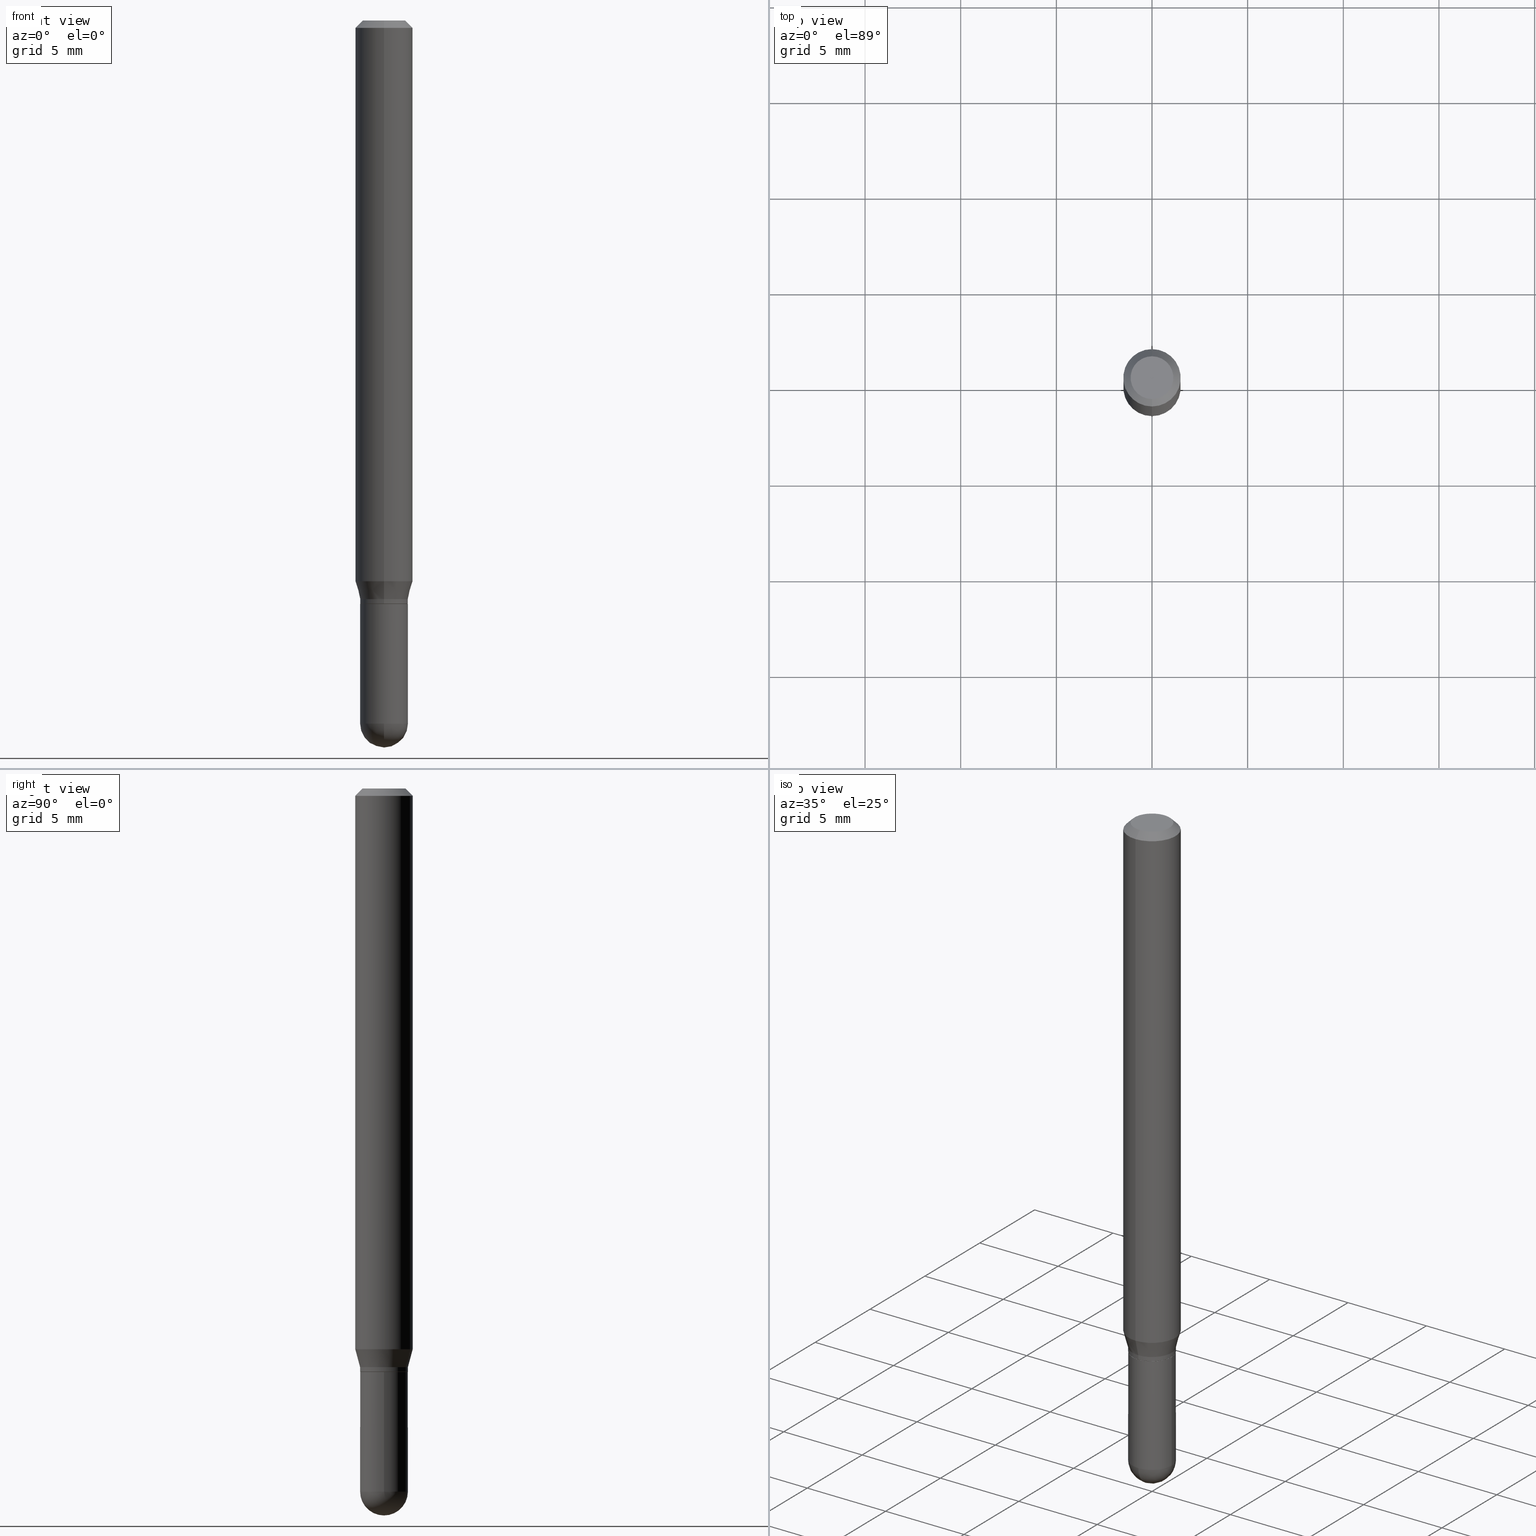
[diagram: canonical four-view strip — front | top / right | iso, engineering-drawing reading convention]
A machine part, canonical four-view strip (front | top / right | iso — engineering-drawing reading convention). The complete STEP part file that produces these views, byte-faithful:
ISO-10303-21;
HEADER;
FILE_DESCRIPTION (( 'STEP AP203' ),
    '1' );
FILE_NAME ('02974.STEP',
    '2024-03-07T22:14:01',
    ( '' ),
    ( '' ),
    'SwSTEP 2.0',
    'SolidWorks 2023',
    '' );
FILE_SCHEMA (( 'CONFIG_CONTROL_DESIGN' ));
ENDSEC;

DATA;
#1 = EDGE_CURVE ( 'NONE', #383, #22, #367, .T. ) ;
#2 = VECTOR ( 'NONE', #136, 39.37007874015748143 ) ;
#3 = AXIS2_PLACEMENT_3D ( 'NONE', #242, #206, #55 ) ;
#4 = LOCAL_TIME ( 17, 14, 1.000000000000000000, #336 ) ;
#5 = CARTESIAN_POINT ( 'NONE',  ( 3.435617637421936134E-16, 0.04919999999999580959, -1.200800000000000090 ) ) ;
#6 = ORIENTED_EDGE ( 'NONE', *, *, #311, .F. ) ;
#7 = DIRECTION ( 'NONE',  ( -2.445524756156847675E-29, 3.491401215299180303E-15, 1.000000000000000000 ) ) ;
#8 = DIRECTION ( 'NONE',  ( -2.445468806185136877E-29, 3.491481338843145188E-15, 1.000000000000000000 ) ) ;
#9 = EDGE_LOOP ( 'NONE', ( #478, #210, #399, #252 ) ) ;
#10 = ORIENTED_EDGE ( 'NONE', *, *, #161, .T. ) ;
#11 = ADVANCED_FACE ( 'NONE', ( #327 ), #317, .T. ) ;
#12 = FACE_OUTER_BOUND ( 'NONE', #437, .T. ) ;
#13 = CARTESIAN_POINT ( 'NONE',  ( 0.000000000000000000, 0.000000000000000000, 0.000000000000000000 ) ) ;
#14 = CIRCLE ( 'NONE', #299, 0.04404999999999999888 ) ;
#15 = ORIENTED_EDGE ( 'NONE', *, *, #91, .F. ) ;
#16 = AXIS2_PLACEMENT_3D ( 'NONE', #202, #277, #512 ) ;
#17 = CC_DESIGN_APPROVAL ( #304, ( #77 ) ) ;
#18 = DIRECTION ( 'NONE',  ( -6.982962677686265922E-15, -1.000000000000000000, 3.491401215299180697E-15 ) ) ;
#19 = LINE ( 'NONE', #324, #322 ) ;
#20 = PERSON_AND_ORGANIZATION_ROLE ( 'design_supplier' ) ;
#21 = CARTESIAN_POINT ( 'NONE',  ( 2.822231676616298540E-29, -4.029214212935987923E-15, -1.154039299545446928 ) ) ;
#22 = VERTEX_POINT ( 'NONE', #99 ) ;
#23 = CALENDAR_DATE ( 2024, 7, 3 ) ;
#24 = DIRECTION ( 'NONE',  ( 7.105427357601001070E-15, 1.000000000000000000, 0.000000000000000000 ) ) ;
#25 = APPLICATION_PROTOCOL_DEFINITION ( 'international standard', 'config_control_design', 1994, #85 ) ;
#26 = CONICAL_SURFACE ( 'NONE', #276, 0.04870000000000000023, 0.7853981633974739252 ) ;
#27 = ORIENTED_EDGE ( 'NONE', *, *, #425, .T. ) ;
#28 = CARTESIAN_POINT ( 'NONE',  ( 3.534141397526511158E-29, -5.057849611423951529E-15, -1.446899999999999853 ) ) ;
#29 = DIRECTION ( 'NONE',  ( -6.982962677686266711E-15, -1.000000000000000000, 2.804772067417108113E-15 ) ) ;
#30 = CARTESIAN_POINT ( 'NONE',  ( 2.936518942467111614E-29, -4.192570791682848632E-15, -1.200799999999999867 ) ) ;
#31 = VERTEX_POINT ( 'NONE', #215 ) ;
#32 = CARTESIAN_POINT ( 'NONE',  ( 3.668287134235294108E-31, -5.237101822948802526E-17, -0.01500000000000009139 ) ) ;
#33 = COORDINATED_UNIVERSAL_TIME_OFFSET ( 5, 0, .BEHIND. ) ;
#34 = EDGE_CURVE ( 'NONE', #357, #401, #417, .T. ) ;
#35 = AXIS2_PLACEMENT_3D ( 'NONE', #28, #298, #109 ) ;
#36 = CC_DESIGN_APPROVAL ( #457, ( #335 ) ) ;
#37 = DIRECTION ( 'NONE',  ( -6.982962677686265922E-15, -1.000000000000000000, 3.505890868245046092E-15 ) ) ;
#38 = EDGE_CURVE ( 'NONE', #401, #357, #70, .T. ) ;
#39 = EDGE_CURVE ( 'NONE', #482, #357, #102, .T. ) ;
#40 = APPROVAL_STATUS ( 'not_yet_approved' ) ;
#41 = VECTOR ( 'NONE', #289, 39.37007874015748854 ) ;
#42 = AXIS2_PLACEMENT_3D ( 'NONE', #90, #213, #438 ) ;
#43 = AXIS2_PLACEMENT_3D ( 'NONE', #227, #177, #29 ) ;
#44 = EDGE_CURVE ( 'NONE', #328, #482, #19, .T. ) ;
#45 = DIRECTION ( 'NONE',  ( -2.445468806185136597E-29, 3.491481338843145583E-15, 1.000000000000000000 ) ) ;
#46 = LINE ( 'NONE', #162, #130 ) ;
#47 = EDGE_CURVE ( 'NONE', #31, #362, #110, .T. ) ;
#48 = DIRECTION ( 'NONE',  ( -4.851104656540964275E-15, -0.7071067811865500152, -0.7071067811865450192 ) ) ;
#49 = AXIS2_PLACEMENT_3D ( 'NONE', #233, #195, #344 ) ;
#50 = ORIENTED_EDGE ( 'NONE', *, *, #296, .F. ) ;
#51 = CARTESIAN_POINT ( 'NONE',  ( -3.435617637421291240E-16, -0.04920000000000508689, -1.446899999999999631 ) ) ;
#52 = DIRECTION ( 'NONE',  ( -2.445524756156847955E-29, 3.491401215299180303E-15, 1.000000000000000000 ) ) ;
#53 = EDGE_CURVE ( 'NONE', #479, #494, #14, .T. ) ;
#54 = EDGE_LOOP ( 'NONE', ( #6, #433 ) ) ;
#55 = DIRECTION ( 'NONE',  ( 1.000000000000000000, -6.982962677686261977E-15, 0.000000000000000000 ) ) ;
#56 = DIRECTION ( 'NONE',  ( -2.445524756156847955E-29, 3.491401215299180303E-15, 1.000000000000000000 ) ) ;
#57 = ADVANCED_FACE ( 'NONE', ( #481 ), #129, .T. ) ;
#58 = CARTESIAN_POINT ( 'NONE',  ( 2.936586127193142595E-29, -4.192474579331255818E-15, -1.200799999999999867 ) ) ;
#59 = DIRECTION ( 'NONE',  ( -2.445524756156847955E-29, 3.491401215299180303E-15, 1.000000000000000000 ) ) ;
#60 = CONICAL_SURFACE ( 'NONE', #346, 0.05904999999999999832, 0.7853981633974483900 ) ;
#61 = ADVANCED_FACE ( 'NONE', ( #491 ), #473, .T. ) ;
#62 = PERSON_AND_ORGANIZATION ( #201, #431 ) ;
#63 = DIRECTION ( 'NONE',  ( -2.445524756156847955E-29, 3.491401215299180303E-15, 1.000000000000000000 ) ) ;
#64 = ORIENTED_EDGE ( 'NONE', *, *, #278, .T. ) ;
#65 = APPROVAL_ROLE ( '' ) ;
#66 = EDGE_CURVE ( 'NONE', #22, #328, #194, .T. ) ;
#67 = CARTESIAN_POINT ( 'NONE',  ( 2.912130879631574160E-29, -4.157560567178263821E-15, -1.190799999999999859 ) ) ;
#68 = DIRECTION ( 'NONE',  ( 0.000000000000000000, 0.000000000000000000, 1.000000000000000000 ) ) ;
#69 = DIRECTION ( 'NONE',  ( -2.445468806185136597E-29, 3.491481338843145583E-15, 1.000000000000000000 ) ) ;
#70 = CIRCLE ( 'NONE', #483, 0.05904999999999999832 ) ;
#71 = APPROVAL_STATUS ( 'not_yet_approved' ) ;
#72 = VECTOR ( 'NONE', #48, 39.37007874015748143 ) ;
#73 = DIRECTION ( 'NONE',  ( -2.445524756156847955E-29, 3.491401215299180303E-15, 1.000000000000000000 ) ) ;
#74 = EDGE_CURVE ( 'NONE', #172, #482, #198, .T. ) ;
#75 = FACE_OUTER_BOUND ( 'NONE', #9, .T. ) ;
#76 = DIRECTION ( 'NONE',  ( 1.000000000000000000, -6.982962677686265922E-15, 4.883557194083112340E-29 ) ) ;
#77 = PRODUCT_DEFINITION ( 'UNKNOWN', '', #335, #469 ) ;
#78 = CARTESIAN_POINT ( 'NONE',  ( -3.435617637421355335E-16, -0.04920000000000421259, -1.190799999999999859 ) ) ;
#79 = ADVANCED_FACE ( 'NONE', ( #144 ), #444, .F. ) ;
#80 = EDGE_LOOP ( 'NONE', ( #219, #232, #280, #450 ) ) ;
#81 = DIRECTION ( 'NONE',  ( -6.982962677686266711E-15, -1.000000000000000000, 2.804772067417108113E-15 ) ) ;
#82 = CIRCLE ( 'NONE', #505, 0.04920000000000004925 ) ;
#83 = EDGE_CURVE ( 'NONE', #172, #401, #264, .T. ) ;
#84 = PLANE ( 'NONE',  #301 ) ;
#85 = APPLICATION_CONTEXT ( 'configuration controlled 3d designs of mechanical parts and assemblies' ) ;
#86 = CYLINDRICAL_SURFACE ( 'NONE', #42, 0.05904999999999999832 ) ;
#87 = PRODUCT_DEFINITION_SHAPE ( 'NONE', 'NONE',  #77 ) ;
#88 = ORIENTED_EDGE ( 'NONE', *, *, #38, .T. ) ;
#89 = EDGE_LOOP ( 'NONE', ( #88, #164, #244, #131 ) ) ;
#90 = CARTESIAN_POINT ( 'NONE',  ( 0.000000000000000000, 0.000000000000000000, 0.000000000000000000 ) ) ;
#91 = EDGE_CURVE ( 'NONE', #157, #362, #293, .T. ) ;
#92 = CIRCLE ( 'NONE', #496, 0.04920000000000006313 ) ;
#93 = ORIENTED_EDGE ( 'NONE', *, *, #381, .T. ) ;
#94 = FACE_OUTER_BOUND ( 'NONE', #89, .T. ) ;
#95 = CC_DESIGN_PERSON_AND_ORGANIZATION_ASSIGNMENT ( #111, #369, ( #77 ) ) ;
#96 = DIRECTION ( 'NONE',  ( 1.000000000000000000, -6.982962677686261977E-15, 0.000000000000000000 ) ) ;
#97 = ORIENTED_EDGE ( 'NONE', *, *, #38, .F. ) ;
#98 = DIRECTION ( 'NONE',  ( -2.445524756156847955E-29, 3.491401215299180303E-15, 1.000000000000000000 ) ) ;
#99 = CARTESIAN_POINT ( 'NONE',  ( -3.435617637421356321E-16, -0.04920000000000428891, -1.200299999999999701 ) ) ;
#100 = EDGE_CURVE ( 'NONE', #439, #180, #207, .T. ) ;
#101 = ORIENTED_EDGE ( 'NONE', *, *, #203, .F. ) ;
#102 = LINE ( 'NONE', #179, #41 ) ;
#103 = DIRECTION ( 'NONE',  ( -1.807323732225334478E-15, -0.2588190451025187966, 0.9659258262890687563 ) ) ;
#104 = ORIENTED_EDGE ( 'NONE', *, *, #309, .F. ) ;
#105 = DIRECTION ( 'NONE',  ( -6.982962677686265922E-15, -1.000000000000000000, 2.776268286244167321E-15 ) ) ;
#106 = DATE_AND_TIME ( #340, #4 ) ;
#107 = VERTEX_POINT ( 'NONE', #250 ) ;
#108 = EDGE_CURVE ( 'NONE', #357, #216, #404, .T. ) ;
#109 = DIRECTION ( 'NONE',  ( -6.982962677686265922E-15, -1.000000000000000000, 0.000000000000000000 ) ) ;
#110 = CIRCLE ( 'NONE', #390, 0.04920000000000007007 ) ;
#111 = PERSON_AND_ORGANIZATION ( #201, #431 ) ;
#112 = VECTOR ( 'NONE', #415, 39.37007874015748143 ) ;
#113 = APPROVAL_PERSON_ORGANIZATION ( #372, #304, #65 ) ;
#114 = CARTESIAN_POINT ( 'NONE',  ( 0.04920000000000000068, -3.435617637421643269E-16, 2.399078973691600472E-30 ) ) ;
#115 = APPROVAL ( #40, 'UNSPECIFIED' ) ;
#116 = DIRECTION ( 'NONE',  ( 6.982962677686265922E-15, 1.000000000000000000, -3.505890868245046092E-15 ) ) ;
#117 = ORIENTED_EDGE ( 'NONE', *, *, #91, .T. ) ;
#118 = APPROVAL_DATE_TIME ( #235, #115 ) ;
#119 = DIRECTION ( 'NONE',  ( -2.445524756156847955E-29, 3.491401215299180303E-15, 1.000000000000000000 ) ) ;
#120 = CIRCLE ( 'NONE', #484, 0.05904999999999999832 ) ;
#121 = LOCAL_TIME ( 17, 14, 1.000000000000000000, #273 ) ;
#122 = APPROVAL_ROLE ( '' ) ;
#123 = CARTESIAN_POINT ( 'NONE',  ( 4.195754854663390985E-16, 0.05904999999999999832, -2.061672417634165953E-16 ) ) ;
#124 = DIRECTION ( 'NONE',  ( -2.445524756156847955E-29, 3.491401215299180303E-15, 1.000000000000000000 ) ) ;
#125 = CARTESIAN_POINT ( 'NONE',  ( -0.04920000000000000068, -4.272610544433528176E-15, -1.446899999999999853 ) ) ;
#126 = ORIENTED_EDGE ( 'NONE', *, *, #506, .F. ) ;
#127 = ORIENTED_EDGE ( 'NONE', *, *, #447, .F. ) ;
#128 = DIRECTION ( 'NONE',  ( 1.000000000000000000, -6.982962677686265922E-15, 4.883557194083112340E-29 ) ) ;
#129 = CYLINDRICAL_SURFACE ( 'NONE', #150, 0.04920000000000000068 ) ;
#130 = VECTOR ( 'NONE', #98, 39.37007874015748143 ) ;
#131 = ORIENTED_EDGE ( 'NONE', *, *, #161, .F. ) ;
#132 = CARTESIAN_POINT ( 'NONE',  ( -4.123439461173458309E-16, -0.05905000000000403676, -1.154039299545446706 ) ) ;
#133 = ORIENTED_EDGE ( 'NONE', *, *, #108, .F. ) ;
#134 = EDGE_LOOP ( 'NONE', ( #126, #345, #360, #140 ) ) ;
#135 = PERSON_AND_ORGANIZATION_ROLE ( 'design_owner' ) ;
#136 = DIRECTION ( 'NONE',  ( -4.937700262164674260E-15, -0.7071067811865632269, 0.7071067811865319186 ) ) ;
#137 = ADVANCED_FACE ( 'NONE', ( #337 ), #426, .T. ) ;
#138 = APPROVAL_STATUS ( 'not_yet_approved' ) ;
#139 = CARTESIAN_POINT ( 'NONE',  ( -3.435617637421355335E-16, -0.04920000000000421259, -1.190799999999999859 ) ) ;
#140 = ORIENTED_EDGE ( 'NONE', *, *, #330, .F. ) ;
#141 = EDGE_LOOP ( 'NONE', ( #495, #446, #181, #101 ) ) ;
#142 = VECTOR ( 'NONE', #103, 39.37007874015748854 ) ;
#143 = CARTESIAN_POINT ( 'NONE',  ( 3.845812557301831141E-16, 0.04919999999999589285, -1.190800000000000081 ) ) ;
#144 = FACE_OUTER_BOUND ( 'NONE', #488, .T. ) ;
#145 = DATE_TIME_ROLE ( 'creation_date' ) ;
#146 = CYLINDRICAL_SURFACE ( 'NONE', #160, 0.04920000000000000068 ) ;
#147 = LENGTH_MEASURE_WITH_UNIT ( LENGTH_MEASURE( 0.02539999999999999897 ), #190 );
#148 = CC_DESIGN_PERSON_AND_ORGANIZATION_ASSIGNMENT ( #256, #409, ( #335 ) ) ;
#149 = CARTESIAN_POINT ( 'NONE',  ( 0.04920000000000000068, -4.965759334169662144E-15, -1.446899999999999853 ) ) ;
#150 = AXIS2_PLACEMENT_3D ( 'NONE', #176, #448, #452 ) ;
#151 = CIRCLE ( 'NONE', #170, 0.04920000000000000068 ) ;
#152 = CARTESIAN_POINT ( 'NONE',  ( -0.04920000000000000068, -4.272610544433528176E-15, -1.200799999999999867 ) ) ;
#153 = VERTEX_POINT ( 'NONE', #466 ) ;
#154 = CARTESIAN_POINT ( 'NONE',  ( 2.936586127193142595E-29, -4.192474579331255818E-15, -1.200799999999999867 ) ) ;
#155 = CIRCLE ( 'NONE', #418, 0.04920000000000000068 ) ;
#156 = CIRCLE ( 'NONE', #393, 0.04404999999999999888 ) ;
#157 = VERTEX_POINT ( 'NONE', #149 ) ;
#158 = FACE_OUTER_BOUND ( 'NONE', #319, .T. ) ;
#159 = CARTESIAN_POINT ( 'NONE',  ( 2.912130879631574160E-29, -4.157560567178263821E-15, -1.190799999999999859 ) ) ;
#160 = AXIS2_PLACEMENT_3D ( 'NONE', #463, #395, #458 ) ;
#161 = EDGE_CURVE ( 'NONE', #401, #107, #422, .T. ) ;
#162 = CARTESIAN_POINT ( 'NONE',  ( -3.435617637421646227E-16, -0.04920000000000004925, 1.717769397927198566E-16 ) ) ;
#163 = DIRECTION ( 'NONE',  ( -6.982962677686265922E-15, -1.000000000000000000, 3.491401215299180303E-15 ) ) ;
#164 = ORIENTED_EDGE ( 'NONE', *, *, #108, .T. ) ;
#165 = CARTESIAN_POINT ( 'NONE',  ( 2.822231676616298540E-29, -4.029214212935987923E-15, -1.154039299545446928 ) ) ;
#166 = ORIENTED_EDGE ( 'NONE', *, *, #184, .T. ) ;
#167 = ORIENTED_EDGE ( 'NONE', *, *, #425, .F. ) ;
#168 = FACE_OUTER_BOUND ( 'NONE', #394, .T. ) ;
#169 = DIRECTION ( 'NONE',  ( -6.982962677686265922E-15, -1.000000000000000000, 4.626330217890369336E-15 ) ) ;
#170 = AXIS2_PLACEMENT_3D ( 'NONE', #226, #303, #306 ) ;
#171 = ORIENTED_EDGE ( 'NONE', *, *, #476, .T. ) ;
#172 = VERTEX_POINT ( 'NONE', #78 ) ;
#173 = CARTESIAN_POINT ( 'NONE',  ( 2.936586127193142595E-29, -4.192474579331255818E-15, -1.200799999999999867 ) ) ;
#174 = ADVANCED_FACE ( 'NONE', ( #300 ), #229, .T. ) ;
#175 = APPLICATION_CONTEXT ( 'configuration controlled 3d designs of mechanical parts and assemblies' ) ;
#176 = CARTESIAN_POINT ( 'NONE',  ( 0.000000000000000000, 0.000000000000000000, 0.000000000000000000 ) ) ;
#177 = DIRECTION ( 'NONE',  ( -2.445524756156847955E-29, 3.491401215299180303E-15, 1.000000000000000000 ) ) ;
#178 = CC_DESIGN_PERSON_AND_ORGANIZATION_ASSIGNMENT ( #492, #135, ( #231 ) ) ;
#179 = CARTESIAN_POINT ( 'NONE',  ( 3.495870259939987306E-16, 0.04919999999999589285, -1.190800000000000081 ) ) ;
#180 = VERTEX_POINT ( 'NONE', #152 ) ;
#181 = ORIENTED_EDGE ( 'NONE', *, *, #381, .F. ) ;
#182 = APPROVAL_DATE_TIME ( #290, #457 ) ;
#183 = DIRECTION ( 'NONE',  ( -2.445524756156847955E-29, 3.491401215299180303E-15, 1.000000000000000000 ) ) ;
#184 = EDGE_CURVE ( 'NONE', #368, #157, #151, .T. ) ;
#185 = CLOSED_SHELL ( 'NONE', ( #453, #498, #137, #353, #61, #308, #11, #275, #79, #398, #236, #464 ) ) ;
#186 = CC_DESIGN_APPROVAL ( #115, ( #285 ) ) ;
#187 = APPLICATION_PROTOCOL_DEFINITION ( 'international standard', 'config_control_design', 1994, #175 ) ;
#188 = CARTESIAN_POINT ( 'NONE',  ( 4.195754854663674975E-16, 0.05904999999999994975, -0.01500000000000029955 ) ) ;
#189 = EDGE_CURVE ( 'NONE', #157, #153, #193, .T. ) ;
#190 =( LENGTH_UNIT ( ) NAMED_UNIT ( * ) SI_UNIT ( $, .METRE. ) );
#191 = DIRECTION ( 'NONE',  ( -6.982962677686266711E-15, -1.000000000000000000, 2.804772067417108113E-15 ) ) ;
#192 = DIRECTION ( 'NONE',  ( 1.000000000000000000, 0.000000000000000000, 0.000000000000000000 ) ) ;
#193 = LINE ( 'NONE', #114, #272 ) ;
#194 = CIRCLE ( 'NONE', #246, 0.04920000000000006313 ) ;
#195 = DIRECTION ( 'NONE',  ( 2.445524756156847955E-29, -3.491401215299180303E-15, -1.000000000000000000 ) ) ;
#196 = PERSON_AND_ORGANIZATION ( #201, #431 ) ;
#197 = EDGE_CURVE ( 'NONE', #107, #216, #120, .T. ) ;
#198 = CIRCLE ( 'NONE', #351, 0.04920000000000004925 ) ;
#199 = DIRECTION ( 'NONE',  ( 1.000000000000000000, -6.982962677686261977E-15, 0.000000000000000000 ) ) ;
#200 = CYLINDRICAL_SURFACE ( 'NONE', #16, 0.04920000000000004925 ) ;
#201 = PERSON ( 'UNSPECIFIED', 'UNSPECIFIED', 'UNSPECIFIED', ('UNSPECIFIED'), ('UNSPECIFIED'), ('UNSPECIFIED') ) ;
#202 = CARTESIAN_POINT ( 'NONE',  ( 0.000000000000000000, 0.000000000000000000, 0.000000000000000000 ) ) ;
#203 = EDGE_CURVE ( 'NONE', #362, #439, #155, .T. ) ;
#204 = EDGE_LOOP ( 'NONE', ( #341, #503, #167, #470, #117 ) ) ;
#205 = ORIENTED_EDGE ( 'NONE', *, *, #100, .F. ) ;
#206 = DIRECTION ( 'NONE',  ( -2.445468806185136597E-29, 3.491481338843145583E-15, 1.000000000000000000 ) ) ;
#207 = LINE ( 'NONE', #356, #234 ) ;
#208 = EDGE_LOOP ( 'NONE', ( #127, #255, #315, #371 ) ) ;
#209 = ORIENTED_EDGE ( 'NONE', *, *, #44, .F. ) ;
#210 = ORIENTED_EDGE ( 'NONE', *, *, #349, .T. ) ;
#211 = DIRECTION ( 'NONE',  ( -2.445468806185136597E-29, 3.491481338843145583E-15, 1.000000000000000000 ) ) ;
#212 = CARTESIAN_POINT ( 'NONE',  ( 3.534141397526511158E-29, -5.057849611423951529E-15, -1.446899999999999853 ) ) ;
#213 = DIRECTION ( 'NONE',  ( -2.445524756156847955E-29, 3.491401215299180303E-15, 1.000000000000000000 ) ) ;
#214 = CLOSED_SHELL ( 'NONE', ( #57, #174, #472, #363, #243 ) ) ;
#215 = CARTESIAN_POINT ( 'NONE',  ( 3.652354753719438961E-29, -5.232643124420936646E-15, -1.496099999999999985 ) ) ;
#216 = VERTEX_POINT ( 'NONE', #188 ) ;
#217 = CC_DESIGN_DATE_AND_TIME_ASSIGNMENT ( #265, #145, ( #77 ) ) ;
#218 = CARTESIAN_POINT ( 'NONE',  ( 3.075995059520799729E-16, 0.04404999999999999888, -1.996303947130745053E-16 ) ) ;
#219 = ORIENTED_EDGE ( 'NONE', *, *, #349, .F. ) ;
#220 = CARTESIAN_POINT ( 'NONE',  ( 2.241772005930627124E-45, -3.200509619141994808E-31, -9.166834235829126661E-17 ) ) ;
#221 = ORIENTED_EDGE ( 'NONE', *, *, #83, .F. ) ;
#222 = CARTESIAN_POINT ( 'NONE',  ( 3.668287134235294108E-31, -5.237101822948802526E-17, -0.01500000000000009139 ) ) ;
#223 = AXIS2_PLACEMENT_3D ( 'NONE', #402, #128, #316 ) ;
#224 = APPROVAL_PERSON_ORGANIZATION ( #416, #457, #378 ) ;
#225 = DIRECTION ( 'NONE',  ( -6.982962677686265133E-15, -1.000000000000000000, 3.491401215299180303E-15 ) ) ;
#226 = CARTESIAN_POINT ( 'NONE',  ( 3.538348815669273817E-29, -5.051824349172146609E-15, -1.446899999999999853 ) ) ;
#227 = CARTESIAN_POINT ( 'NONE',  ( 2.936586127193142595E-29, -4.192474579331255818E-15, -1.200799999999999867 ) ) ;
#228 = MANIFOLD_SOLID_BREP ( 'Body-Move/Copy2[1]', #214 ) ;
#229 = SPHERICAL_SURFACE ( 'NONE', #451, 0.04920000000000007007 ) ;
#230 = MANIFOLD_SOLID_BREP ( 'Body-Move/Copy2[2]', #185 ) ;
#231 = PRODUCT ( '02974', '02974', '', ( #413 ) ) ;
#232 = ORIENTED_EDGE ( 'NONE', *, *, #468, .T. ) ;
#233 = CARTESIAN_POINT ( 'NONE',  ( 3.668287134235294108E-31, -5.237101822948802526E-17, -0.01500000000000009139 ) ) ;
#234 = VECTOR ( 'NONE', #8, 39.37007874015748143 ) ;
#235 = DATE_AND_TIME ( #428, #121 ) ;
#236 = ADVANCED_FACE ( 'NONE', ( #507 ), #26, .T. ) ;
#237 = AXIS2_PLACEMENT_3D ( 'NONE', #13, #52, #286 ) ;
#238 = AXIS2_PLACEMENT_3D ( 'NONE', #173, #326, #490 ) ;
#239 = FACE_OUTER_BOUND ( 'NONE', #297, .T. ) ;
#240 = AXIS2_PLACEMENT_3D ( 'NONE', #350, #352, #18 ) ;
#241 = DIRECTION ( 'NONE',  ( 2.438088387897960049E-29, -3.491481338843145188E-15, -1.000000000000000000 ) ) ;
#242 = CARTESIAN_POINT ( 'NONE',  ( 3.538348815669273817E-29, -5.051824349172146609E-15, -1.446899999999999853 ) ) ;
#243 = ADVANCED_FACE ( 'NONE', ( #239 ), #146, .T. ) ;
#244 = ORIENTED_EDGE ( 'NONE', *, *, #197, .F. ) ;
#245 = CARTESIAN_POINT ( 'NONE',  ( 4.195754854663672510E-16, 0.05904999999999595989, -1.154039299545446928 ) ) ;
#246 = AXIS2_PLACEMENT_3D ( 'NONE', #294, #259, #411 ) ;
#247 = CC_DESIGN_SECURITY_CLASSIFICATION ( #285, ( #335 ) ) ;
#248 = EDGE_LOOP ( 'NONE', ( #133, #379, #10, #50 ) ) ;
#249 = SPHERICAL_SURFACE ( 'NONE', #223, 0.04920000000000007007 ) ;
#250 = CARTESIAN_POINT ( 'NONE',  ( -4.123439461173736383E-16, -0.05905000000000005383, -0.01499999999999988495 ) ) ;
#251 = EDGE_LOOP ( 'NONE', ( #104, #487, #15, #408 ) ) ;
#252 = ORIENTED_EDGE ( 'NONE', *, *, #1, .F. ) ;
#253 = CARTESIAN_POINT ( 'NONE',  ( 3.495870259939987799E-16, 0.04919999999999583734, -1.200300000000000145 ) ) ;
#254 = DIRECTION ( 'NONE',  ( -2.445524756156847955E-29, 3.491401215299180303E-15, 1.000000000000000000 ) ) ;
#255 = ORIENTED_EDGE ( 'NONE', *, *, #53, .F. ) ;
#256 = PERSON_AND_ORGANIZATION ( #201, #431 ) ;
#257 = AXIS2_PLACEMENT_3D ( 'NONE', #260, #183, #105 ) ;
#258 = CIRCLE ( 'NONE', #35, 0.04920000000000007007 ) ;
#259 = DIRECTION ( 'NONE',  ( -2.445524756156847955E-29, 3.491401215299180303E-15, 1.000000000000000000 ) ) ;
#260 = CARTESIAN_POINT ( 'NONE',  ( 2.912130879631574160E-29, -4.157560567178263821E-15, -1.190799999999999859 ) ) ;
#261 = VERTEX_POINT ( 'NONE', #342 ) ;
#262 =( NAMED_UNIT ( * ) SI_UNIT ( $, .STERADIAN. ) SOLID_ANGLE_UNIT ( ) );
#263 = EDGE_LOOP ( 'NONE', ( #27, #64 ) ) ;
#264 = LINE ( 'NONE', #139, #142 ) ;
#265 = DATE_AND_TIME ( #421, #427 ) ;
#266 = CARTESIAN_POINT ( 'NONE',  ( 2.936586127193142595E-29, -4.192474579331255818E-15, -1.200799999999999867 ) ) ;
#267 = AXIS2_PLACEMENT_3D ( 'NONE', #21, #254, #454 ) ;
#268 = COORDINATED_UNIVERSAL_TIME_OFFSET ( 5, 0, .BEHIND. ) ;
#269 = DIRECTION ( 'NONE',  ( 1.000000000000000000, -6.982962677686261977E-15, 0.000000000000000000 ) ) ;
#270 = DIRECTION ( 'NONE',  ( -2.445524756156847955E-29, 3.491401215299180303E-15, 1.000000000000000000 ) ) ;
#271 = DIRECTION ( 'NONE',  ( -6.982962677686265922E-15, -1.000000000000000000, 5.552536572488332275E-15 ) ) ;
#272 = VECTOR ( 'NONE', #424, 39.37007874015748143 ) ;
#273 = COORDINATED_UNIVERSAL_TIME_OFFSET ( 5, 0, .BEHIND. ) ;
#274 = CC_DESIGN_PERSON_AND_ORGANIZATION_ASSIGNMENT ( #62, #20, ( #335 ) ) ;
#275 = ADVANCED_FACE ( 'NONE', ( #384 ), #60, .T. ) ;
#276 = AXIS2_PLACEMENT_3D ( 'NONE', #154, #429, #81 ) ;
#277 = DIRECTION ( 'NONE',  ( -2.445524756156847955E-29, 3.491401215299180303E-15, 1.000000000000000000 ) ) ;
#278 = EDGE_CURVE ( 'NONE', #180, #153, #391, .T. ) ;
#279 = CARTESIAN_POINT ( 'NONE',  ( -3.400702824032917868E-16, -0.04870000000000419133, -1.200799999999999867 ) ) ;
#280 = ORIENTED_EDGE ( 'NONE', *, *, #1, .T. ) ;
#281 = CARTESIAN_POINT ( 'NONE',  ( 3.460343123151980786E-16, 0.04869999999999580914, -1.200800000000000090 ) ) ;
#282 = ORIENTED_EDGE ( 'NONE', *, *, #34, .F. ) ;
#283 = CARTESIAN_POINT ( 'NONE',  ( -4.051124067684085231E-16, -0.05905000000000005383, -0.01499999999999988495 ) ) ;
#284 = CIRCLE ( 'NONE', #375, 0.04870000000000000023 ) ;
#285 = SECURITY_CLASSIFICATION ( '', '', #332 ) ;
#286 = DIRECTION ( 'NONE',  ( -6.982962677686265922E-15, -1.000000000000000000, 3.491401215299180303E-15 ) ) ;
#287 = DIRECTION ( 'NONE',  ( -6.982962677686265133E-15, -1.000000000000000000, 2.776268286244166532E-15 ) ) ;
#288 = CC_DESIGN_DATE_AND_TIME_ASSIGNMENT ( #392, #423, ( #285 ) ) ;
#289 = DIRECTION ( 'NONE',  ( 1.839019923739604654E-15, 0.2588190451025255689, 0.9659258262890669799 ) ) ;
#290 = DATE_AND_TIME ( #23, #420 ) ;
#291 = DIRECTION ( 'NONE',  ( -2.445524756156847955E-29, 3.491401215299180303E-15, 1.000000000000000000 ) ) ;
#292 = CARTESIAN_POINT ( 'NONE',  ( 0.000000000000000000, 0.000000000000000000, 0.000000000000000000 ) ) ;
#293 = CIRCLE ( 'NONE', #460, 0.04920000000000000068 ) ;
#294 = CARTESIAN_POINT ( 'NONE',  ( 2.935363364815064229E-29, -4.190728878723606060E-15, -1.200299999999999923 ) ) ;
#295 = LOCAL_TIME ( 17, 14, 1.000000000000000000, #33 ) ;
#296 = EDGE_CURVE ( 'NONE', #216, #107, #430, .T. ) ;
#297 = EDGE_LOOP ( 'NONE', ( #205, #93, #166, #489, #307 ) ) ;
#298 = DIRECTION ( 'NONE',  ( -1.000000000000000000, 6.982962677686265922E-15, -4.883557194083112340E-29 ) ) ;
#299 = AXIS2_PLACEMENT_3D ( 'NONE', #220, #59, #497 ) ;
#300 = FACE_OUTER_BOUND ( 'NONE', #251, .T. ) ;
#301 = AXIS2_PLACEMENT_3D ( 'NONE', #5, #241, #396 ) ;
#302 = APPROVAL_PERSON_ORGANIZATION ( #196, #115, #122 ) ;
#303 = DIRECTION ( 'NONE',  ( -2.445468806185136597E-29, 3.491481338843145583E-15, 1.000000000000000000 ) ) ;
#304 = APPROVAL ( #138, 'UNSPECIFIED' ) ;
#305 = PERSON_AND_ORGANIZATION_ROLE ( 'classification_officer' ) ;
#306 = DIRECTION ( 'NONE',  ( 1.000000000000000000, -6.982962677686261977E-15, 0.000000000000000000 ) ) ;
#307 = ORIENTED_EDGE ( 'NONE', *, *, #278, .F. ) ;
#308 = ADVANCED_FACE ( 'NONE', ( #158 ), #400, .T. ) ;
#309 = EDGE_CURVE ( 'NONE', #31, #368, #258, .T. ) ;
#310 = CARTESIAN_POINT ( 'NONE',  ( 2.912130879631574160E-29, -4.157560567178263821E-15, -1.190799999999999859 ) ) ;
#311 = EDGE_CURVE ( 'NONE', #383, #261, #284, .T. ) ;
#312 = AXIS2_PLACEMENT_3D ( 'NONE', #58, #7, #163 ) ;
#313 = DIRECTION ( 'NONE',  ( 5.024295867788190974E-15, 0.7071067811865681119, 0.7071067811865270336 ) ) ;
#314 = DIRECTION ( 'NONE',  ( -6.982962677686265922E-15, -1.000000000000000000, 2.776268286244167321E-15 ) ) ;
#315 = ORIENTED_EDGE ( 'NONE', *, *, #330, .T. ) ;
#316 = DIRECTION ( 'NONE',  ( -6.982962677686265922E-15, -1.000000000000000000, 5.552536572488332275E-15 ) ) ;
#317 = CYLINDRICAL_SURFACE ( 'NONE', #237, 0.05904999999999999832 ) ;
#318 = ORIENTED_EDGE ( 'NONE', *, *, #321, .T. ) ;
#319 = EDGE_LOOP ( 'NONE', ( #361, #171, #405, #282 ) ) ;
#320 = CYLINDRICAL_SURFACE ( 'NONE', #240, 0.04920000000000004925 ) ;
#321 = EDGE_CURVE ( 'NONE', #328, #22, #92, .T. ) ;
#322 = VECTOR ( 'NONE', #291, 39.37007874015748143 ) ;
#323 = CIRCLE ( 'NONE', #467, 0.04920000000000000068 ) ;
#324 = CARTESIAN_POINT ( 'NONE',  ( 3.495870259939695921E-16, 0.04920000000000004925, -1.717769397927198566E-16 ) ) ;
#325 = ORIENTED_EDGE ( 'NONE', *, *, #434, .T. ) ;
#326 = DIRECTION ( 'NONE',  ( -2.445524756156847955E-29, 3.491401215299180303E-15, 1.000000000000000000 ) ) ;
#327 = FACE_OUTER_BOUND ( 'NONE', #248, .T. ) ;
#328 = VERTEX_POINT ( 'NONE', #253 ) ;
#329 = DIRECTION ( 'NONE',  ( 2.445524756156847675E-29, -3.491401215299180303E-15, -1.000000000000000000 ) ) ;
#330 = EDGE_CURVE ( 'NONE', #479, #216, #436, .T. ) ;
#331 = ORIENTED_EDGE ( 'NONE', *, *, #44, .T. ) ;
#332 = SECURITY_CLASSIFICATION_LEVEL ( 'unclassified' ) ;
#333 = CIRCLE ( 'NONE', #3, 0.04920000000000000068 ) ;
#334 = DIRECTION ( 'NONE',  ( -2.445468806185136597E-29, 3.491481338843145583E-15, 1.000000000000000000 ) ) ;
#335 = PRODUCT_DEFINITION_FORMATION_WITH_SPECIFIED_SOURCE ( 'ANY', '', #231, .NOT_KNOWN. ) ;
#336 = COORDINATED_UNIVERSAL_TIME_OFFSET ( 5, 0, .BEHIND. ) ;
#337 = FACE_OUTER_BOUND ( 'NONE', #134, .T. ) ;
#338 = COORDINATED_UNIVERSAL_TIME_OFFSET ( 5, 0, .BEHIND. ) ;
#339 = CARTESIAN_POINT ( 'NONE',  ( 2.935363364815064229E-29, -4.190728878723606060E-15, -1.200299999999999923 ) ) ;
#340 = CALENDAR_DATE ( 2024, 7, 3 ) ;
#341 = ORIENTED_EDGE ( 'NONE', *, *, #203, .T. ) ;
#342 = CARTESIAN_POINT ( 'NONE',  ( 3.478106691545985279E-16, 0.04869999999999580914, -1.200800000000000090 ) ) ;
#343 = VECTOR ( 'NONE', #119, 39.37007874015748143 ) ;
#344 = DIRECTION ( 'NONE',  ( 6.982962677686265922E-15, 1.000000000000000000, -3.505890868245046092E-15 ) ) ;
#345 = ORIENTED_EDGE ( 'NONE', *, *, #447, .T. ) ;
#346 = AXIS2_PLACEMENT_3D ( 'NONE', #32, #380, #116 ) ;
#347 = AXIS2_PLACEMENT_3D ( 'NONE', #292, #68, #192 ) ;
#348 = CARTESIAN_POINT ( 'NONE',  ( 3.534141397526511158E-29, -5.057849611423951529E-15, -1.446899999999999853 ) ) ;
#349 = EDGE_CURVE ( 'NONE', #261, #328, #485, .T. ) ;
#350 = CARTESIAN_POINT ( 'NONE',  ( 0.000000000000000000, 0.000000000000000000, 0.000000000000000000 ) ) ;
#351 = AXIS2_PLACEMENT_3D ( 'NONE', #67, #63, #370 ) ;
#352 = DIRECTION ( 'NONE',  ( -2.445524756156847955E-29, 3.491401215299180303E-15, 1.000000000000000000 ) ) ;
#353 = ADVANCED_FACE ( 'NONE', ( #94 ), #86, .T. ) ;
#354 = ORIENTED_EDGE ( 'NONE', *, *, #39, .T. ) ;
#355 = PLANE ( 'NONE',  #312 ) ;
#356 = CARTESIAN_POINT ( 'NONE',  ( -0.04920000000000000068, 3.495870259939692963E-16, -2.420116064405413767E-30 ) ) ;
#357 = VERTEX_POINT ( 'NONE', #245 ) ;
#358 = DIRECTION ( 'NONE',  ( 1.000000000000000000, -6.982962677686261977E-15, 0.000000000000000000 ) ) ;
#359 = CARTESIAN_POINT ( 'NONE',  ( -3.400702824032917868E-16, -0.04870000000000419133, -1.200799999999999867 ) ) ;
#360 = ORIENTED_EDGE ( 'NONE', *, *, #197, .T. ) ;
#361 = ORIENTED_EDGE ( 'NONE', *, *, #39, .F. ) ;
#362 = VERTEX_POINT ( 'NONE', #364 ) ;
#363 = ADVANCED_FACE ( 'NONE', ( #406 ), #249, .T. ) ;
#364 = CARTESIAN_POINT ( 'NONE',  ( 3.495870259940048443E-16, 0.04919999999999498386, -1.446900000000000075 ) ) ;
#365 = AXIS2_PLACEMENT_3D ( 'NONE', #30, #45, #199 ) ;
#366 = DIMENSIONAL_EXPONENTS ( 1.000000000000000000, 0.000000000000000000, 0.000000000000000000, 0.000000000000000000, 0.000000000000000000, 0.000000000000000000, 0.000000000000000000 ) ;
#367 = LINE ( 'NONE', #359, #2 ) ;
#368 = VERTEX_POINT ( 'NONE', #51 ) ;
#369 = PERSON_AND_ORGANIZATION_ROLE ( 'creator' ) ;
#370 = DIRECTION ( 'NONE',  ( -6.982962677686265922E-15, -1.000000000000000000, 2.776268286244167321E-15 ) ) ;
#371 = ORIENTED_EDGE ( 'NONE', *, *, #296, .T. ) ;
#372 = PERSON_AND_ORGANIZATION ( #201, #431 ) ;
#373 = CARTESIAN_POINT ( 'NONE',  ( 3.538348815669273817E-29, -5.051824349172146609E-15, -1.446899999999999853 ) ) ;
#374 =( CONVERSION_BASED_UNIT ( 'INCH', #147 ) LENGTH_UNIT ( ) NAMED_UNIT ( #366 ) );
#375 = AXIS2_PLACEMENT_3D ( 'NONE', #266, #419, #191 ) ;
#376 = DIRECTION ( 'NONE',  ( -6.982962677686265922E-15, -1.000000000000000000, 2.776268286244167321E-15 ) ) ;
#377 =( GEOMETRIC_REPRESENTATION_CONTEXT ( 3 ) GLOBAL_UNCERTAINTY_ASSIGNED_CONTEXT ( ( #388 ) ) GLOBAL_UNIT_ASSIGNED_CONTEXT ( ( #374, #455, #262 ) ) REPRESENTATION_CONTEXT ( 'NONE', 'WORKASPACE' ) );
#378 = APPROVAL_ROLE ( '' ) ;
#379 = ORIENTED_EDGE ( 'NONE', *, *, #34, .T. ) ;
#380 = DIRECTION ( 'NONE',  ( 2.445524756156847955E-29, -3.491401215299180303E-15, -1.000000000000000000 ) ) ;
#381 = EDGE_CURVE ( 'NONE', #439, #368, #333, .T. ) ;
#382 = DIRECTION ( 'NONE',  ( -2.445524756156847955E-29, 3.491401215299180303E-15, 1.000000000000000000 ) ) ;
#383 = VERTEX_POINT ( 'NONE', #279 ) ;
#384 = FACE_OUTER_BOUND ( 'NONE', #208, .T. ) ;
#385 = CARTESIAN_POINT ( 'NONE',  ( -4.123439461173739834E-16, -0.05904999999999999832, 2.061672417634165953E-16 ) ) ;
#386 = VECTOR ( 'NONE', #443, 39.37007874015748143 ) ;
#387 = SHAPE_DEFINITION_REPRESENTATION ( #87, #403 ) ;
#388 = UNCERTAINTY_MEASURE_WITH_UNIT (LENGTH_MEASURE( 1.000000000000000082E-05 ), #374, 'distance_accuracy_value', 'NONE');
#389 = CALENDAR_DATE ( 2024, 7, 3 ) ;
#390 = AXIS2_PLACEMENT_3D ( 'NONE', #212, #407, #24 ) ;
#391 = CIRCLE ( 'NONE', #365, 0.04920000000000000068 ) ;
#392 = DATE_AND_TIME ( #389, #295 ) ;
#393 = AXIS2_PLACEMENT_3D ( 'NONE', #459, #382, #225 ) ;
#394 = EDGE_LOOP ( 'NONE', ( #209, #318, #325, #441 ) ) ;
#395 = DIRECTION ( 'NONE',  ( -2.445468806185136597E-29, 3.491481338843145583E-15, 1.000000000000000000 ) ) ;
#396 = DIRECTION ( 'NONE',  ( -1.000000000000000000, 6.982962677686265922E-15, -4.876176775795935793E-29 ) ) ;
#397 = FACE_OUTER_BOUND ( 'NONE', #54, .T. ) ;
#398 = ADVANCED_FACE ( 'NONE', ( #397 ), #355, .F. ) ;
#399 = ORIENTED_EDGE ( 'NONE', *, *, #66, .F. ) ;
#400 = CONICAL_SURFACE ( 'NONE', #410, 0.04920000000000004925, 0.2617993877991509066 ) ;
#401 = VERTEX_POINT ( 'NONE', #132 ) ;
#402 = CARTESIAN_POINT ( 'NONE',  ( 3.534141397526511158E-29, -5.057849611423951529E-15, -1.446899999999999853 ) ) ;
#403 = ADVANCED_BREP_SHAPE_REPRESENTATION ( '02974', ( #228, #230, #347 ), #377 ) ;
#404 = LINE ( 'NONE', #123, #112 ) ;
#405 = ORIENTED_EDGE ( 'NONE', *, *, #83, .T. ) ;
#406 = FACE_OUTER_BOUND ( 'NONE', #141, .T. ) ;
#407 = DIRECTION ( 'NONE',  ( 1.000000000000000000, -7.105427357601001070E-15, 4.926315508542082329E-29 ) ) ;
#408 = ORIENTED_EDGE ( 'NONE', *, *, #184, .F. ) ;
#409 = PERSON_AND_ORGANIZATION_ROLE ( 'creator' ) ;
#410 = AXIS2_PLACEMENT_3D ( 'NONE', #310, #471, #376 ) ;
#411 = DIRECTION ( 'NONE',  ( -6.982962677686265133E-15, -1.000000000000000000, 2.776268286244166532E-15 ) ) ;
#412 = ORIENTED_EDGE ( 'NONE', *, *, #74, .T. ) ;
#413 = MECHANICAL_CONTEXT ( 'NONE', #175, 'mechanical' ) ;
#414 = ORIENTED_EDGE ( 'NONE', *, *, #74, .F. ) ;
#415 = DIRECTION ( 'NONE',  ( -2.445524756156847955E-29, 3.491401215299180303E-15, 1.000000000000000000 ) ) ;
#416 = PERSON_AND_ORGANIZATION ( #201, #431 ) ;
#417 = CIRCLE ( 'NONE', #267, 0.05904999999999999832 ) ;
#418 = AXIS2_PLACEMENT_3D ( 'NONE', #500, #69, #269 ) ;
#419 = DIRECTION ( 'NONE',  ( -2.445524756156847955E-29, 3.491401215299180303E-15, 1.000000000000000000 ) ) ;
#420 = LOCAL_TIME ( 17, 14, 1.000000000000000000, #338 ) ;
#421 = CALENDAR_DATE ( 2024, 7, 3 ) ;
#422 = LINE ( 'NONE', #385, #343 ) ;
#423 = DATE_TIME_ROLE ( 'classification_date' ) ;
#424 = DIRECTION ( 'NONE',  ( -2.445468806185136877E-29, 3.491481338843145188E-15, 1.000000000000000000 ) ) ;
#425 = EDGE_CURVE ( 'NONE', #153, #180, #323, .T. ) ;
#426 = CONICAL_SURFACE ( 'NONE', #49, 0.05904999999999999832, 0.7853981633974483900 ) ;
#427 = LOCAL_TIME ( 17, 14, 1.000000000000000000, #268 ) ;
#428 = CALENDAR_DATE ( 2024, 7, 3 ) ;
#429 = DIRECTION ( 'NONE',  ( -2.445524756156847955E-29, 3.491401215299180303E-15, 1.000000000000000000 ) ) ;
#430 = CIRCLE ( 'NONE', #474, 0.05904999999999999832 ) ;
#431 = ORGANIZATION ( 'UNSPECIFIED', 'UNSPECIFIED', '' ) ;
#432 = FACE_OUTER_BOUND ( 'NONE', #263, .T. ) ;
#433 = ORIENTED_EDGE ( 'NONE', *, *, #468, .F. ) ;
#434 = EDGE_CURVE ( 'NONE', #22, #172, #46, .T. ) ;
#435 = ORIENTED_EDGE ( 'NONE', *, *, #53, .T. ) ;
#436 = LINE ( 'NONE', #475, #386 ) ;
#437 = EDGE_LOOP ( 'NONE', ( #456, #331, #414, #440 ) ) ;
#438 = DIRECTION ( 'NONE',  ( -6.982962677686265922E-15, -1.000000000000000000, 3.491401215299180303E-15 ) ) ;
#439 = VERTEX_POINT ( 'NONE', #125 ) ;
#440 = ORIENTED_EDGE ( 'NONE', *, *, #434, .F. ) ;
#441 = ORIENTED_EDGE ( 'NONE', *, *, #476, .F. ) ;
#442 = VECTOR ( 'NONE', #313, 39.37007874015748143 ) ;
#443 = DIRECTION ( 'NONE',  ( 4.937700262164548042E-15, 0.7071067811865451302, -0.7071067811865499042 ) ) ;
#444 = PLANE ( 'NONE',  #509 ) ;
#445 = CARTESIAN_POINT ( 'NONE',  ( 2.936518942467111614E-29, -4.192570791682848632E-15, -1.200799999999999867 ) ) ;
#446 = ORIENTED_EDGE ( 'NONE', *, *, #309, .T. ) ;
#447 = EDGE_CURVE ( 'NONE', #494, #107, #480, .T. ) ;
#448 = DIRECTION ( 'NONE',  ( -2.445468806185136597E-29, 3.491481338843145583E-15, 1.000000000000000000 ) ) ;
#449 = CC_DESIGN_PERSON_AND_ORGANIZATION_ASSIGNMENT ( #465, #305, ( #285 ) ) ;
#450 = ORIENTED_EDGE ( 'NONE', *, *, #321, .F. ) ;
#451 = AXIS2_PLACEMENT_3D ( 'NONE', #348, #76, #271 ) ;
#452 = DIRECTION ( 'NONE',  ( 1.000000000000000000, -6.982962677686266711E-15, 4.876176775795935793E-29 ) ) ;
#453 = ADVANCED_FACE ( 'NONE', ( #12 ), #200, .T. ) ;
#454 = DIRECTION ( 'NONE',  ( -6.982962677686265922E-15, -1.000000000000000000, 4.626330217890369336E-15 ) ) ;
#455 =( NAMED_UNIT ( * ) PLANE_ANGLE_UNIT ( ) SI_UNIT ( $, .RADIAN. ) );
#456 = ORIENTED_EDGE ( 'NONE', *, *, #66, .T. ) ;
#457 = APPROVAL ( #71, 'UNSPECIFIED' ) ;
#458 = DIRECTION ( 'NONE',  ( 1.000000000000000000, -6.982962677686266711E-15, 4.876176775795935793E-29 ) ) ;
#459 = CARTESIAN_POINT ( 'NONE',  ( 2.241772005930627124E-45, -3.200509619141994808E-31, -9.166834235829126661E-17 ) ) ;
#460 = AXIS2_PLACEMENT_3D ( 'NONE', #373, #334, #96 ) ;
#461 = CIRCLE ( 'NONE', #238, 0.04870000000000000023 ) ;
#462 = CARTESIAN_POINT ( 'NONE',  ( 3.668287134235294108E-31, -5.237101822948802526E-17, -0.01500000000000009139 ) ) ;
#463 = CARTESIAN_POINT ( 'NONE',  ( 0.000000000000000000, 0.000000000000000000, 0.000000000000000000 ) ) ;
#464 = ADVANCED_FACE ( 'NONE', ( #168 ), #320, .T. ) ;
#465 = PERSON_AND_ORGANIZATION ( #201, #431 ) ;
#466 = CARTESIAN_POINT ( 'NONE',  ( 0.04920000000000000068, -4.536132555425013156E-15, -1.200799999999999867 ) ) ;
#467 = AXIS2_PLACEMENT_3D ( 'NONE', #445, #211, #358 ) ;
#468 = EDGE_CURVE ( 'NONE', #261, #383, #461, .T. ) ;
#469 = DESIGN_CONTEXT ( 'detailed design', #85, 'design' ) ;
#470 = ORIENTED_EDGE ( 'NONE', *, *, #189, .F. ) ;
#471 = DIRECTION ( 'NONE',  ( -2.445524756156847955E-29, 3.491401215299180303E-15, 1.000000000000000000 ) ) ;
#472 = ADVANCED_FACE ( 'NONE', ( #432 ), #84, .F. ) ;
#473 = CONICAL_SURFACE ( 'NONE', #257, 0.04920000000000004925, 0.2617993877991509066 ) ;
#474 = AXIS2_PLACEMENT_3D ( 'NONE', #222, #270, #511 ) ;
#475 = CARTESIAN_POINT ( 'NONE',  ( 4.123439461173743285E-16, 0.05904999999999994975, -0.01500000000000029955 ) ) ;
#476 = EDGE_CURVE ( 'NONE', #482, #172, #82, .T. ) ;
#477 = CARTESIAN_POINT ( 'NONE',  ( 3.599717260347271507E-16, 0.04404999999999999888, -2.454645658922200893E-16 ) ) ;
#478 = ORIENTED_EDGE ( 'NONE', *, *, #311, .T. ) ;
#479 = VERTEX_POINT ( 'NONE', #477 ) ;
#480 = LINE ( 'NONE', #283, #72 ) ;
#481 = FACE_OUTER_BOUND ( 'NONE', #204, .T. ) ;
#482 = VERTEX_POINT ( 'NONE', #143 ) ;
#483 = AXIS2_PLACEMENT_3D ( 'NONE', #165, #56, #169 ) ;
#484 = AXIS2_PLACEMENT_3D ( 'NONE', #462, #73, #37 ) ;
#485 = LINE ( 'NONE', #281, #442 ) ;
#486 = EDGE_LOOP ( 'NONE', ( #412, #354, #97, #221 ) ) ;
#487 = ORIENTED_EDGE ( 'NONE', *, *, #47, .T. ) ;
#488 = EDGE_LOOP ( 'NONE', ( #435, #508 ) ) ;
#489 = ORIENTED_EDGE ( 'NONE', *, *, #189, .T. ) ;
#490 = DIRECTION ( 'NONE',  ( -6.982962677686266711E-15, -1.000000000000000000, 2.804772067417108113E-15 ) ) ;
#491 = FACE_OUTER_BOUND ( 'NONE', #486, .T. ) ;
#492 = PERSON_AND_ORGANIZATION ( #201, #431 ) ;
#493 = DIRECTION ( 'NONE',  ( 6.982962677686265922E-15, 1.000000000000000000, -3.491401215299180303E-15 ) ) ;
#494 = VERTEX_POINT ( 'NONE', #501 ) ;
#495 = ORIENTED_EDGE ( 'NONE', *, *, #47, .F. ) ;
#496 = AXIS2_PLACEMENT_3D ( 'NONE', #339, #504, #287 ) ;
#497 = DIRECTION ( 'NONE',  ( -6.982962677686265133E-15, -1.000000000000000000, 3.491401215299180303E-15 ) ) ;
#498 = ADVANCED_FACE ( 'NONE', ( #75 ), #510, .T. ) ;
#499 = APPROVAL_DATE_TIME ( #106, #304 ) ;
#500 = CARTESIAN_POINT ( 'NONE',  ( 3.538348815669273817E-29, -5.051824349172146609E-15, -1.446899999999999853 ) ) ;
#501 = CARTESIAN_POINT ( 'NONE',  ( -3.536586717851222218E-16, -0.04404999999999999888, 6.212788117563761772E-17 ) ) ;
#502 = PRODUCT_RELATED_PRODUCT_CATEGORY ( 'detail', '', ( #231 ) ) ;
#503 = ORIENTED_EDGE ( 'NONE', *, *, #100, .T. ) ;
#504 = DIRECTION ( 'NONE',  ( -2.445524756156847955E-29, 3.491401215299180303E-15, 1.000000000000000000 ) ) ;
#505 = AXIS2_PLACEMENT_3D ( 'NONE', #159, #124, #314 ) ;
#506 = EDGE_CURVE ( 'NONE', #494, #479, #156, .T. ) ;
#507 = FACE_OUTER_BOUND ( 'NONE', #80, .T. ) ;
#508 = ORIENTED_EDGE ( 'NONE', *, *, #506, .T. ) ;
#509 = AXIS2_PLACEMENT_3D ( 'NONE', #218, #329, #493 ) ;
#510 = CONICAL_SURFACE ( 'NONE', #43, 0.04870000000000000023, 0.7853981633974739252 ) ;
#511 = DIRECTION ( 'NONE',  ( -6.982962677686265922E-15, -1.000000000000000000, 3.505890868245046092E-15 ) ) ;
#512 = DIRECTION ( 'NONE',  ( -6.982962677686265922E-15, -1.000000000000000000, 3.491401215299180697E-15 ) ) ;
ENDSEC;
END-ISO-10303-21;
